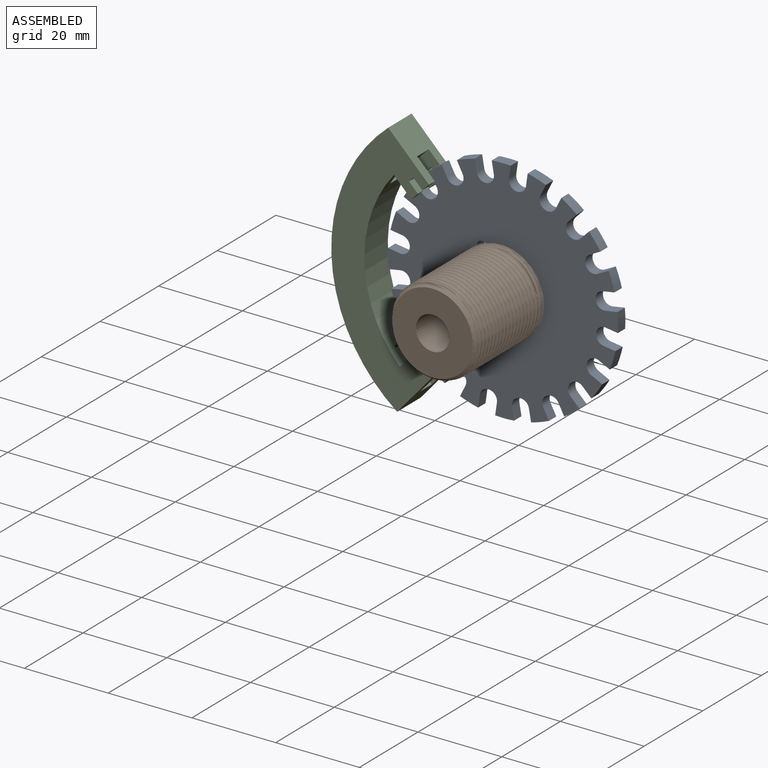
[diagram: assembled view]
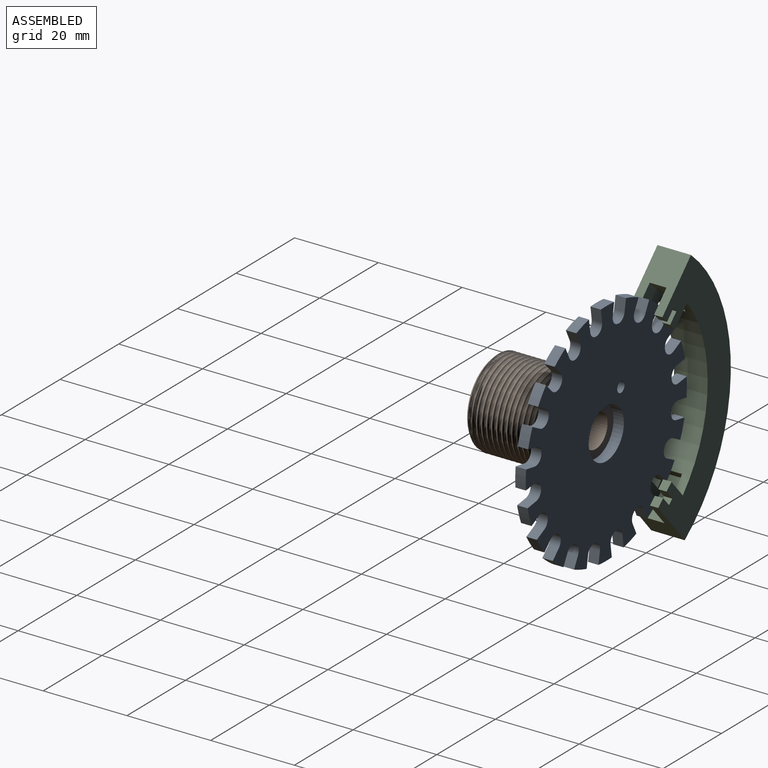
[diagram: assembled view, second angle]
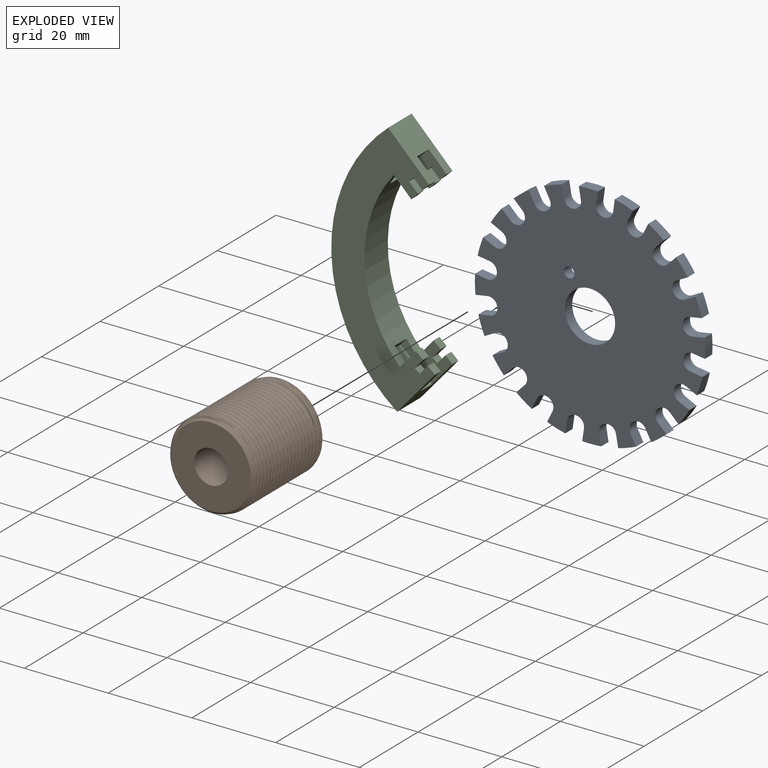
[diagram: exploded view]
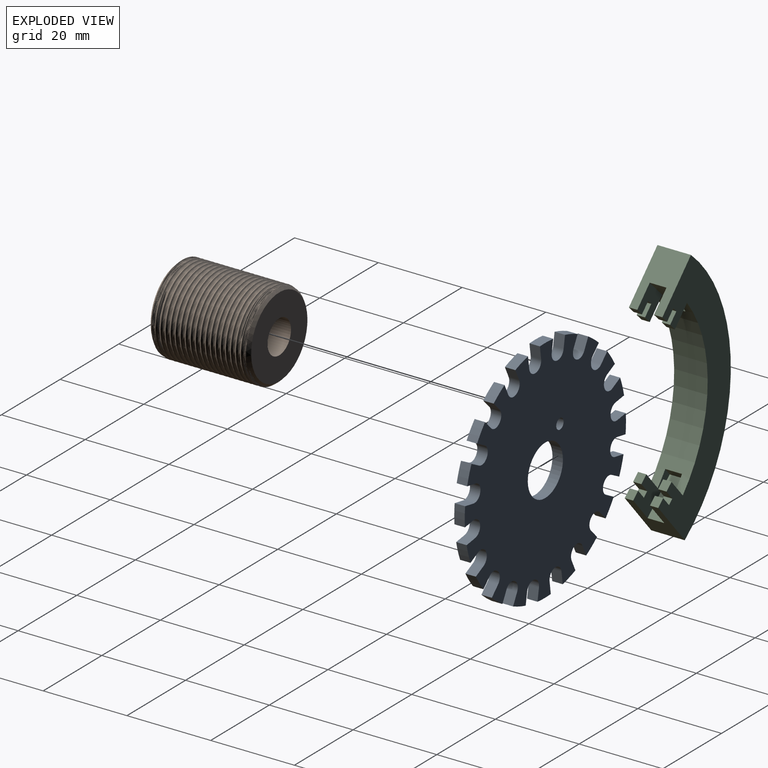
[diagram: exploded view, second angle]
ASSEMBLY  parts=3 mates=2
PART A: 124 faces, bbox 54.8x2.5x54.8 mm
  f0: cylinder r=27.5mm len=4.04mm, axis (0,1,0), area 11.3mm2, adj f20,f21,f73,f117
  f1: cylinder r=27.5mm len=4.47mm, axis (0,1,0), area 11.3mm2, adj f20,f21,f112,f118
  f2: cylinder r=27.5mm len=4.47mm, axis (0,1,0), area 11.3mm2, adj f20,f21,f107,f113
  f3: cylinder r=27.5mm len=4.04mm, axis (0,1,0), area 11.3mm2, adj f20,f21,f102,f108
  f4: cylinder r=27.5mm len=3.2mm, axis (0,1,0), area 11.3mm2, adj f20,f21,f97,f103
  f5: cylinder r=27.5mm len=4.04mm, axis (0,1,0), area 11.3mm2, adj f20,f21,f92,f98
  f6: cylinder r=27.5mm len=4.47mm, axis (0,1,0), area 11.3mm2, adj f20,f21,f87,f93
  f7: cylinder r=27.5mm len=4.47mm, axis (0,1,0), area 11.3mm2, adj f20,f21,f82,f88
  f8: cylinder r=27.5mm len=4.04mm, axis (0,1,0), area 11.3mm2, adj f20,f21,f68,f77
  f9: cylinder r=27.5mm len=3.2mm, axis (0,1,0), area 11.3mm2, adj f20,f21,f72,f78
  f10: cylinder r=27.5mm len=4.47mm, axis (0,1,0), area 11.3mm2, adj f20,f21,f63,f67
  f11: cylinder r=27.5mm len=4.47mm, axis (0,1,0), area 11.3mm2, adj f20,f21,f43,f62
  f12: cylinder r=27.5mm len=4.47mm, axis (0,1,0), area 11.3mm2, adj f20,f21,f23,f57
  f13: cylinder r=27.5mm len=4.04mm, axis (0,1,0), area 11.3mm2, adj f20,f21,f52,f58
  f14: cylinder r=27.5mm len=3.2mm, axis (0,1,0), area 11.3mm2, adj f20,f21,f47,f53
  f15: cylinder r=27.5mm len=4.04mm, axis (0,1,0), area 11.3mm2, adj f20,f21,f42,f48
  f16: cylinder r=27.5mm len=3.2mm, axis (0,1,0), area 11.3mm2, adj f20,f21,f33,f37
  f17: cylinder r=27.5mm len=4.04mm, axis (0,1,0), area 11.3mm2, adj f20,f21,f32,f83
  f18: cylinder r=27.5mm len=4.04mm, axis (0,1,0), area 11.3mm2, adj f20,f21,f27,f38
  f19: cylinder r=27.5mm len=4.47mm, axis (0,1,0), area 11.3mm2, adj f20,f21,f22,f28
  f20: plane 54.85x54.85mm, normal (0,-1,0), area 1884.2mm2, adj f0,f1,f2,f3,f4,f5,f6,f7
  f21: plane 54.85x54.85mm, normal (0,1,0), area 1884.2mm2, adj f0,f1,f2,f3,f4,f5,f6,f7
  f22: plane 2.92x2.5mm, normal (-1,0,0), area 7.3mm2, adj f19,f20,f21,f26
  f23: plane 2.92x2.5mm, normal (1,0,0), area 7.3mm2, adj f12,f20,f21,f25
  f24: plane 2.5x0.1mm, normal (0,0,1), area 0.2mm2, adj f20,f21,f25,f26
  f25: cylinder r=2mm len=2.5mm, axis (0,1,0), area 7.9mm2, adj f20,f21,f23,f24
  f26: cylinder r=2mm len=2.5mm, axis (0,-1,0), area 7.9mm2, adj f20,f21,f22,f24
  f27: plane 2.78x2.5mm, normal (-0.95,0,0.31), area 7.3mm2, adj f18,f20,f21,f31
  f28: plane 2.78x2.5mm, normal (0.95,0,-0.31), area 7.3mm2, adj f19,f20,f21,f30
  f29: plane 2.5x0.1mm, normal (0.31,0,0.95), area 0.2mm2, adj f20,f21,f30,f31
  f30: cylinder r=2mm len=2.52mm, axis (0,1,0), area 7.9mm2, adj f20,f21,f28,f29
  f31: cylinder r=2mm len=2.52mm, axis (0,-1,0), area 7.9mm2, adj f20,f21,f27,f29
  f32: plane 2.5x2.37mm, normal (-0.59,0,0.81), area 7.3mm2, adj f17,f20,f21,f36
  f33: plane 2.5x2.37mm, normal (0.59,0,-0.81), area 7.3mm2, adj f16,f20,f21,f35
  f34: plane 2.5x0.08mm, normal (0.81,0,0.59), area 0.3mm2, adj f20,f21,f35,f36
  f35: cylinder r=2mm len=2.79mm, axis (0,1,0), area 7.9mm2, adj f20,f21,f33,f34
  f36: cylinder r=2mm len=2.79mm, axis (0,-1,0), area 7.9mm2, adj f20,f21,f32,f34
  f37: plane 2.5x2.37mm, normal (-0.81,0,0.59), area 7.3mm2, adj f16,f20,f21,f41
  f38: plane 2.5x2.37mm, normal (0.81,0,-0.59), area 7.3mm2, adj f18,f20,f21,f40
  f39: plane 2.5x0.08mm, normal (0.59,0,0.81), area 0.3mm2, adj f20,f21,f40,f41
  f40: cylinder r=2mm len=2.79mm, axis (0,1,0), area 7.9mm2, adj f20,f21,f38,f39
  f41: cylinder r=2mm len=2.79mm, axis (0,-1,0), area 7.9mm2, adj f20,f21,f37,f39
  f42: plane 2.78x2.5mm, normal (-0.31,0,-0.95), area 7.3mm2, adj f15,f20,f21,f46
  f43: plane 2.78x2.5mm, normal (0.31,0,0.95), area 7.3mm2, adj f11,f20,f21,f45
  f44: plane 2.5x0.1mm, normal (-0.95,0,0.31), area 0.2mm2, adj f20,f21,f45,f46
  f45: cylinder r=2mm len=2.52mm, axis (0,1,0), area 7.9mm2, adj f20,f21,f43,f44
  f46: cylinder r=2mm len=2.52mm, axis (0,-1,0), area 7.9mm2, adj f20,f21,f42,f44
  f47: plane 2.5x2.37mm, normal (-0.59,0,-0.81), area 7.3mm2, adj f14,f20,f21,f51
  f48: plane 2.5x2.37mm, normal (0.59,0,0.81), area 7.3mm2, adj f15,f20,f21,f50
  f49: plane 2.5x0.08mm, normal (-0.81,0,0.59), area 0.3mm2, adj f20,f21,f50,f51
  f50: cylinder r=2mm len=2.79mm, axis (0,1,0), area 7.9mm2, adj f20,f21,f48,f49
  f51: cylinder r=2mm len=2.79mm, axis (0,-1,0), area 7.9mm2, adj f20,f21,f47,f49
  f52: plane 2.5x2.37mm, normal (-0.81,0,-0.59), area 7.3mm2, adj f13,f20,f21,f56
  f53: plane 2.5x2.37mm, normal (0.81,0,0.59), area 7.3mm2, adj f14,f20,f21,f55
  f54: plane 2.5x0.08mm, normal (-0.59,0,0.81), area 0.3mm2, adj f20,f21,f55,f56
  f55: cylinder r=2mm len=2.79mm, axis (0,1,0), area 7.9mm2, adj f20,f21,f53,f54
  f56: cylinder r=2mm len=2.79mm, axis (0,-1,0), area 7.9mm2, adj f20,f21,f52,f54
  f57: plane 2.78x2.5mm, normal (-0.95,0,-0.31), area 7.3mm2, adj f12,f20,f21,f61
  f58: plane 2.78x2.5mm, normal (0.95,0,0.31), area 7.3mm2, adj f13,f20,f21,f60
  f59: plane 2.5x0.1mm, normal (-0.31,0,0.95), area 0.2mm2, adj f20,f21,f60,f61
  f60: cylinder r=2mm len=2.52mm, axis (0,1,0), area 7.9mm2, adj f20,f21,f58,f59
  f61: cylinder r=2mm len=2.52mm, axis (0,-1,0), area 7.9mm2, adj f20,f21,f57,f59
  f62: plane 2.92x2.5mm, normal (0,0,-1), area 7.3mm2, adj f11,f20,f21,f66
  f63: plane 2.92x2.5mm, normal (0,0,1), area 7.3mm2, adj f10,f20,f21,f65
  f64: plane 2.5x0.1mm, normal (-1,0,0), area 0.2mm2, adj f20,f21,f65,f66
  f65: cylinder r=2mm len=2.5mm, axis (0,1,0), area 7.9mm2, adj f20,f21,f63,f64
  f66: cylinder r=2mm len=2.5mm, axis (0,-1,0), area 7.9mm2, adj f20,f21,f62,f64
  f67: plane 2.78x2.5mm, normal (0.31,0,-0.95), area 7.3mm2, adj f10,f20,f21,f71
  f68: plane 2.78x2.5mm, normal (-0.31,0,0.95), area 7.3mm2, adj f8,f20,f21,f70
  f69: plane 2.5x0.1mm, normal (-0.95,0,-0.31), area 0.2mm2, adj f20,f21,f70,f71
  f70: cylinder r=2mm len=2.52mm, axis (0,1,0), area 7.9mm2, adj f20,f21,f68,f69
  f71: cylinder r=2mm len=2.52mm, axis (0,-1,0), area 7.9mm2, adj f20,f21,f67,f69
  f72: plane 2.5x2.37mm, normal (0.81,0,-0.59), area 7.3mm2, adj f9,f20,f21,f76
  f73: plane 2.5x2.37mm, normal (-0.81,0,0.59), area 7.3mm2, adj f0,f20,f21,f75
  f74: plane 2.5x0.08mm, normal (-0.59,0,-0.81), area 0.3mm2, adj f20,f21,f75,f76
  f75: cylinder r=2mm len=2.79mm, axis (0,1,0), area 7.9mm2, adj f20,f21,f73,f74
  f76: cylinder r=2mm len=2.79mm, axis (0,-1,0), area 7.9mm2, adj f20,f21,f72,f74
  f77: plane 2.5x2.37mm, normal (0.59,0,-0.81), area 7.3mm2, adj f8,f20,f21,f81
  f78: plane 2.5x2.37mm, normal (-0.59,0,0.81), area 7.3mm2, adj f9,f20,f21,f80
  f79: plane 2.5x0.08mm, normal (-0.81,0,-0.59), area 0.3mm2, adj f20,f21,f80,f81
  f80: cylinder r=2mm len=2.79mm, axis (0,1,0), area 7.9mm2, adj f20,f21,f78,f79
  f81: cylinder r=2mm len=2.79mm, axis (0,-1,0), area 7.9mm2, adj f20,f21,f77,f79
  f82: plane 2.78x2.5mm, normal (-0.31,0,0.95), area 7.3mm2, adj f7,f20,f21,f86
  f83: plane 2.78x2.5mm, normal (0.31,0,-0.95), area 7.3mm2, adj f17,f20,f21,f85
  f84: plane 2.5x0.1mm, normal (0.95,0,0.31), area 0.2mm2, adj f20,f21,f85,f86
  f85: cylinder r=2mm len=2.52mm, axis (0,1,0), area 7.9mm2, adj f20,f21,f83,f84
  f86: cylinder r=2mm len=2.52mm, axis (0,-1,0), area 7.9mm2, adj f20,f21,f82,f84
  f87: plane 2.92x2.5mm, normal (0,0,1), area 7.3mm2, adj f6,f20,f21,f91
  f88: plane 2.92x2.5mm, normal (0,0,-1), area 7.3mm2, adj f7,f20,f21,f90
  f89: plane 2.5x0.1mm, normal (1,0,0), area 0.2mm2, adj f20,f21,f90,f91
  f90: cylinder r=2mm len=2.5mm, axis (0,1,0), area 7.9mm2, adj f20,f21,f88,f89
  f91: cylinder r=2mm len=2.5mm, axis (0,-1,0), area 7.9mm2, adj f20,f21,f87,f89
  f92: plane 2.78x2.5mm, normal (0.31,0,0.95), area 7.3mm2, adj f5,f20,f21,f96
  f93: plane 2.78x2.5mm, normal (-0.31,0,-0.95), area 7.3mm2, adj f6,f20,f21,f95
  f94: plane 2.5x0.1mm, normal (0.95,0,-0.31), area 0.2mm2, adj f20,f21,f95,f96
  f95: cylinder r=2mm len=2.52mm, axis (0,1,0), area 7.9mm2, adj f20,f21,f93,f94
  f96: cylinder r=2mm len=2.52mm, axis (0,-1,0), area 7.9mm2, adj f20,f21,f92,f94
  f97: plane 2.5x2.37mm, normal (0.59,0,0.81), area 7.3mm2, adj f4,f20,f21,f101
  f98: plane 2.5x2.37mm, normal (-0.59,0,-0.81), area 7.3mm2, adj f5,f20,f21,f100
  f99: plane 2.5x0.08mm, normal (0.81,0,-0.59), area 0.3mm2, adj f20,f21,f100,f101
  f100: cylinder r=2mm len=2.79mm, axis (0,1,0), area 7.9mm2, adj f20,f21,f98,f99
  f101: cylinder r=2mm len=2.79mm, axis (0,-1,0), area 7.9mm2, adj f20,f21,f97,f99
  f102: plane 2.5x2.37mm, normal (0.81,0,0.59), area 7.3mm2, adj f3,f20,f21,f106
  f103: plane 2.5x2.37mm, normal (-0.81,0,-0.59), area 7.3mm2, adj f4,f20,f21,f105
  f104: plane 2.5x0.08mm, normal (0.59,0,-0.81), area 0.3mm2, adj f20,f21,f105,f106
  f105: cylinder r=2mm len=2.79mm, axis (0,1,0), area 7.9mm2, adj f20,f21,f103,f104
  f106: cylinder r=2mm len=2.79mm, axis (0,-1,0), area 7.9mm2, adj f20,f21,f102,f104
  f107: plane 2.78x2.5mm, normal (0.95,0,0.31), area 7.3mm2, adj f2,f20,f21,f111
  f108: plane 2.78x2.5mm, normal (-0.95,0,-0.31), area 7.3mm2, adj f3,f20,f21,f110
  f109: plane 2.5x0.1mm, normal (0.31,0,-0.95), area 0.2mm2, adj f20,f21,f110,f111
  f110: cylinder r=2mm len=2.52mm, axis (0,1,0), area 7.9mm2, adj f20,f21,f108,f109
  f111: cylinder r=2mm len=2.52mm, axis (0,-1,0), area 7.9mm2, adj f20,f21,f107,f109
  f112: plane 2.92x2.5mm, normal (1,0,0), area 7.3mm2, adj f1,f20,f21,f116
  f113: plane 2.92x2.5mm, normal (-1,0,0), area 7.3mm2, adj f2,f20,f21,f115
  f114: plane 2.5x0.1mm, normal (0,0,-1), area 0.2mm2, adj f20,f21,f115,f116
  f115: cylinder r=2mm len=2.5mm, axis (0,1,0), area 7.9mm2, adj f20,f21,f113,f114
  f116: cylinder r=2mm len=2.5mm, axis (0,-1,0), area 7.9mm2, adj f20,f21,f112,f114
  f117: plane 2.78x2.5mm, normal (0.95,0,-0.31), area 7.3mm2, adj f0,f20,f21,f121
  f118: plane 2.78x2.5mm, normal (-0.95,0,0.31), area 7.3mm2, adj f1,f20,f21,f120
  f119: plane 2.5x0.1mm, normal (-0.31,0,-0.95), area 0.2mm2, adj f20,f21,f120,f121
  f120: cylinder r=2mm len=2.52mm, axis (0,1,0), area 7.9mm2, adj f20,f21,f118,f119
  f121: cylinder r=2mm len=2.52mm, axis (0,-1,0), area 7.9mm2, adj f20,f21,f117,f119
  f122: cylinder r=1.25mm len=2.5mm, axis (0,-1,0), area 19.6mm2, adj f20,f21
  f123: cylinder r=6mm len=12mm, axis (0,-1,0), area 94.2mm2, adj f20,f21
PART B: 8 faces, bbox 22.4x26.4x25.9 mm
  f0: cone r=9.6mm half-angle=45deg, axis (0,1,0), area 46.1mm2, adj f1,f3,f4
  f1: cone r=9.6mm half-angle=45deg, axis (0,1,0), area 0.6mm2, adj f0,f3,f6
  f2: cone r=10.6mm half-angle=45deg, axis (0,-1,0), area 48.1mm2, adj f3,f5,f6
  f3: bspline ~26.38x25.85mm, area 1776.5mm2, adj f0,f1,f2,f6
  f4: plane 19.2x19.2mm, normal (0,-1,0), area 239.3mm2, adj f0,f7
  f5: plane 19.2x19.2mm, normal (0,1,0), area 239.3mm2, adj f2,f7
  f6: cylinder r=10.4mm len=22.4mm, axis (0,1,0), area -112.6mm2, adj f1,f2,f3
  f7: cylinder r=4mm len=24mm, axis (0,1,0), area 603.2mm2, adj f4,f5
PART C: 38 faces, bbox 24.8x8x60.8 mm
  f0: cylinder r=31mm len=41.01mm, axis (0,-1,0), area 326.3mm2, adj f7,f8,f19,f20,f28,f29,f30,f32
  f1: plane 9.74x9.74mm, normal (0.71,0,0.71), area 86.2mm2, adj f2,f14,f27,f28,f29,f34,f35,f36
  f2: plane 2x1.59mm, normal (0.71,0,-0.71), area 4.5mm2, adj f1,f3,f28,f34
  f3: plane 2.12x2.12mm, normal (-0.71,0,-0.71), area 6mm2, adj f2,f4,f28,f34
  f4: plane 2x1.06mm, normal (0.71,0,-0.71), area 3mm2, adj f3,f5,f28,f34
  f5: plane 2.12x2.12mm, normal (0.71,0,0.71), area 6mm2, adj f4,f6,f28,f34
  f6: plane 2x1.59mm, normal (0.71,0,-0.71), area 4.5mm2, adj f5,f7,f28,f34
  f7: plane 4.14x4.14mm, normal (-0.71,0,-0.71), area 11.7mm2, adj f0,f6,f28,f34
  f8: plane 4.42x3.84mm, normal (-0.75,0,0.66), area 11.7mm2, adj f0,f9,f29,f30
  f9: plane 2x1.7mm, normal (0.66,0,0.75), area 4.5mm2, adj f8,f10,f29,f30
  f10: plane 2.26x2mm, normal (0.75,0,-0.66), area 6mm2, adj f9,f11,f29,f30
  f11: plane 2x1.13mm, normal (0.66,0,0.75), area 3mm2, adj f10,f12,f29,f30
  f12: plane 2.26x2mm, normal (-0.75,0,0.66), area 6mm2, adj f11,f13,f29,f30
  f13: plane 2x1.7mm, normal (0.66,0,0.75), area 4.5mm2, adj f12,f26,f29,f30
  f14: plane 2x1.59mm, normal (0.71,0,-0.71), area 4.5mm2, adj f1,f15,f29,f36
  f15: plane 2.12x2.12mm, normal (-0.71,0,-0.71), area 6mm2, adj f14,f16,f29,f36
  f16: plane 2x1.06mm, normal (0.71,0,-0.71), area 3mm2, adj f15,f17,f29,f36
  f17: plane 2.12x2.12mm, normal (0.71,0,0.71), area 6mm2, adj f16,f18,f29,f36
  f18: plane 2x1.59mm, normal (0.71,0,-0.71), area 4.5mm2, adj f17,f19,f29,f36
  f19: plane 4.14x4.14mm, normal (-0.71,0,-0.71), area 11.7mm2, adj f0,f18,f29,f36
  f20: plane 4.42x3.84mm, normal (-0.75,0,0.66), area 11.7mm2, adj f0,f21,f28,f32
  f21: plane 2x1.7mm, normal (0.66,0,0.75), area 4.5mm2, adj f20,f22,f28,f32
  f22: plane 2.26x2mm, normal (0.75,0,-0.66), area 6mm2, adj f21,f23,f28,f32
  f23: plane 2x1.13mm, normal (0.66,0,0.75), area 3mm2, adj f22,f24,f28,f32
  f24: plane 2.26x2mm, normal (-0.75,0,0.66), area 6mm2, adj f23,f25,f28,f32
  f25: plane 2x1.7mm, normal (0.66,0,0.75), area 4.5mm2, adj f24,f26,f28,f32
  f26: plane 10.4x9.04mm, normal (0.75,0,-0.66), area 80.2mm2, adj f13,f25,f27,f28,f29,f30,f31,f32
  f27: cylinder r=38.89mm len=60.77mm, axis (0,-1,0), area 558.5mm2, adj f1,f26,f28,f29
  f28: plane 60.77x24.75mm, normal (0,1,0), area 562.2mm2, adj f0,f1,f2,f3,f4,f5,f6,f7
  f29: plane 60.77x24.75mm, normal (0,-1,0), area 562.2mm2, adj f0,f1,f8,f9,f10,f11,f12,f13
  f30: plane 12.47x9.6mm, normal (0,1,0), area 48.2mm2, adj f0,f8,f9,f10,f11,f12,f13,f26
  f31: plane 7.55x6.56mm, normal (0.66,0,0.75), area 40mm2, adj f26,f30,f32,f33
  f32: plane 12.47x9.6mm, normal (0,-1,0), area 48.2mm2, adj f0,f20,f21,f22,f23,f24,f25,f26
  f33: plane 4x1.74mm, normal (0.75,0,-0.66), area 9.2mm2, adj f0,f30,f31,f32
  f34: plane 11.31x8.49mm, normal (0,-1,0), area 33.2mm2, adj f0,f1,f2,f3,f4,f5,f6,f7
  f35: plane 7.07x7.07mm, normal (0.71,0,-0.71), area 40mm2, adj f1,f34,f36,f37
  f36: plane 11.31x8.49mm, normal (0,1,0), area 33.2mm2, adj f0,f1,f14,f15,f16,f17,f18,f19
  f37: plane 4x0.57mm, normal (0.71,0,0.71), area 3.2mm2, adj f0,f34,f35,f36
PLACE A rot(axis=(0,1,0),152.1deg) t=(-3.45,22.07,2.86)mm
PLACE B rot(axis=(0,1,0),152.1deg) t=(-3.43,19.57,2.84)mm
PLACE C t=(-3.45,16.57,2.86)mm fixed
MATE fastened B.f7 <-> A.f20  axis (0,1,0) through (-3.43,19.57,2.84)mm
MATE revolute C.f27 <-> A.f123  axis (0,1,0) through (-3.45,24.57,2.86)mm
